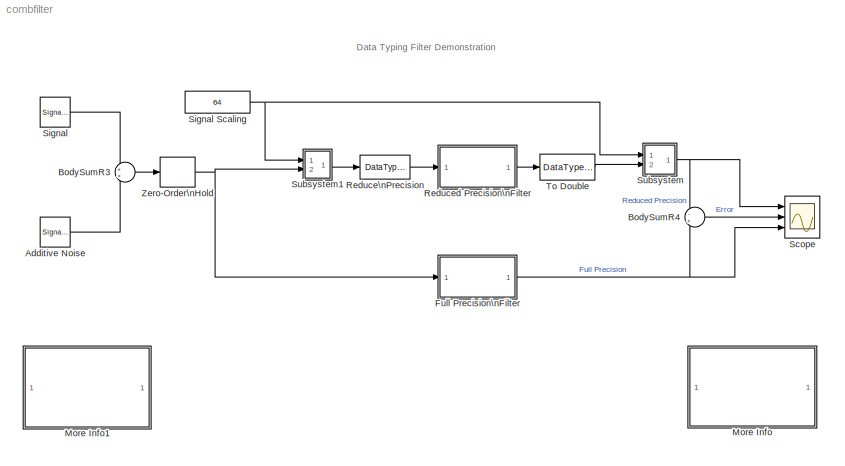
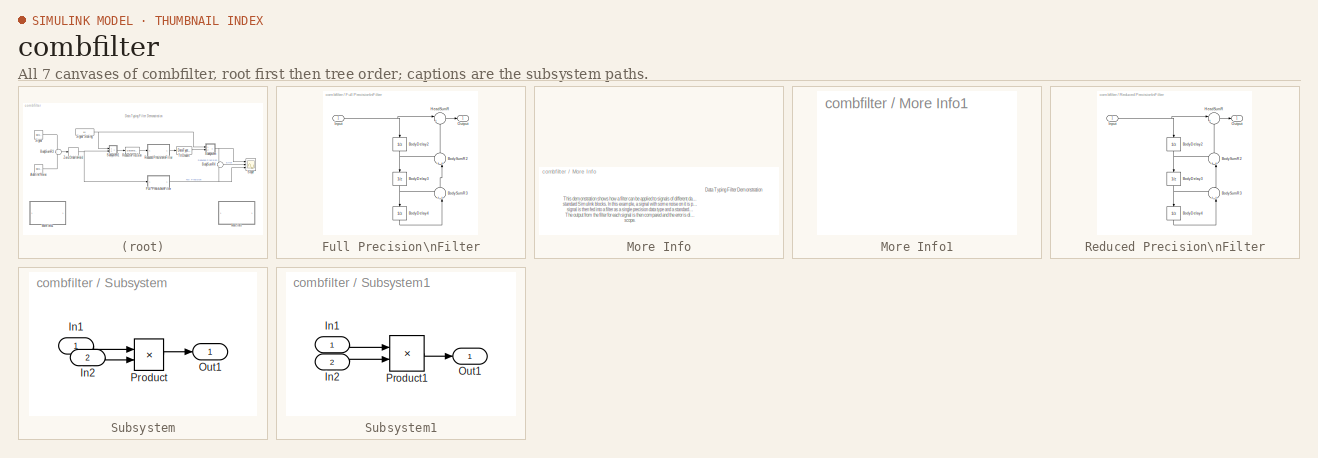
[diagram: thumbnail index - all 7 canvases of the model, root first then tree order]
MODEL combfilter
KIND model
BLOCK [SignalGenerator] Additive Noise
  Amplitude = 3
  AttributesFormatString = Waveform: %<Waveform>\\nAmplitude: %<Amplitude>\\nFreq: %<Frequency> %<Units>
  Frequency = 25
  Ports = [0, 1]
BLOCK [Sum] BodySumR3
  IconShape = round
  Ports = [2, 1]
BLOCK [Sum] BodySumR4
  IconShape = round
  Inputs = -+
  Ports = [2, 1]
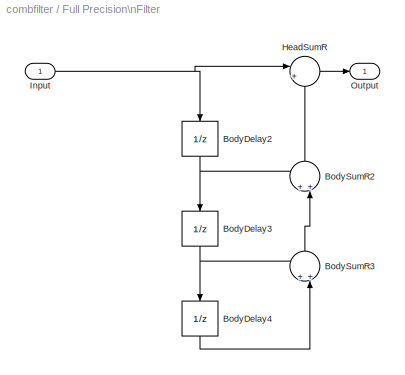
BLOCK [SubSystem] Full Precision\nFilter
  MinAlgLoopOccurrences = off
  Ports = [1, 1]
  PropExecContextAcrossSSBoundary = on
  RTWSystemCode = Auto
  TreatAsAtomicUnit = off
BLOCK [UnitDelay] Full Precision\nFilter/BodyDelay2
  SampleTime = -1
BLOCK [UnitDelay] Full Precision\nFilter/BodyDelay3
  SampleTime = -1
BLOCK [UnitDelay] Full Precision\nFilter/BodyDelay4
  SampleTime = -1
BLOCK [Sum] Full Precision\nFilter/BodySumR2
  IconShape = round
  Inputs = ++|
  Ports = [2, 1]
BLOCK [Sum] Full Precision\nFilter/BodySumR3
  IconShape = round
  Inputs = ++|
  Ports = [2, 1]
BLOCK [Sum] Full Precision\nFilter/HeadSumR
  IconShape = round
  Inputs = |++
  Ports = [2, 1]
BLOCK [Inport] Full Precision\nFilter/Input
  IconDisplay = Port number
  LatchInput = off
  Port = 1
BLOCK [Outport] Full Precision\nFilter/Output
  IconDisplay = Port number
BLOCK [SubSystem] More Info
  MaskDisplay = disp('Double click\\nhere for\\ninformation on\\nthis demonstration')
  MaskIconFrame = on
  MaskIconOpaque = on
  MaskIconRotate = none
  MaskIconUnits = autoscale
  MinAlgLoopOccurrences = off
  Ports = []
  PropExecContextAcrossSSBoundary = on
  RTWSystemCode = Auto
  TreatAsAtomicUnit = off
BLOCK [SubSystem] More Info1
  MaskDisplay = disp('Double click\\nhere for\\nSimulink Help')
  MaskIconFrame = on
  MaskIconOpaque = on
  MaskIconRotate = none
  MaskIconUnits = autoscale
  MinAlgLoopOccurrences = off
  OpenFcn = simcad(bdroot);
  Ports = []
  PropExecContextAcrossSSBoundary = on
  RTWSystemCode = Auto
  TreatAsAtomicUnit = off
BLOCK [DataTypeConversion] Reduce\nPrecision
  OutDataTypeMode = single
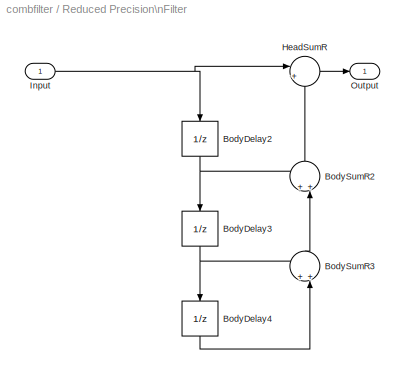
BLOCK [SubSystem] Reduced Precision\nFilter
  MinAlgLoopOccurrences = off
  Ports = [1, 1]
  PropExecContextAcrossSSBoundary = on
  RTWSystemCode = Auto
  TreatAsAtomicUnit = off
BLOCK [UnitDelay] Reduced Precision\nFilter/BodyDelay2
  SampleTime = -1
BLOCK [UnitDelay] Reduced Precision\nFilter/BodyDelay3
  SampleTime = -1
BLOCK [UnitDelay] Reduced Precision\nFilter/BodyDelay4
  SampleTime = -1
BLOCK [Sum] Reduced Precision\nFilter/BodySumR2
  IconShape = round
  Inputs = ++|
  Ports = [2, 1]
BLOCK [Sum] Reduced Precision\nFilter/BodySumR3
  IconShape = round
  Inputs = ++|
  Ports = [2, 1]
BLOCK [Sum] Reduced Precision\nFilter/HeadSumR
  IconShape = round
  Inputs = |++
  Ports = [2, 1]
BLOCK [Inport] Reduced Precision\nFilter/Input
  IconDisplay = Port number
  LatchInput = off
  Port = 1
BLOCK [Outport] Reduced Precision\nFilter/Output
  IconDisplay = Port number
BLOCK [Scope] Scope
  DataFormat = Array
  LimitDataPoints = off
  NumInputPorts = 3
  Ports = [3]
  TimeRange = 4
  YMax = 400~0.2~400
  YMin = -400~-0.2~-400
BLOCK [SignalGenerator] Signal
  Amplitude = 100
  AttributesFormatString = Waveform: %<Waveform>\\nAmplitude: %<Amplitude>\\nFreq: %<Frequency> %<Units>
  Ports = [0, 1]
BLOCK [Constant] Signal Scaling
  Value = 64
BLOCK [SubSystem] Subsystem
  MaskDisplay = port_label('input',1,'/')\nport_label('input',2,'x')
  MaskIconFrame = on
  MaskIconOpaque = on
  MaskIconRotate = none
  MaskIconUnits = autoscale
  MinAlgLoopOccurrences = off
  Ports = [2, 1]
  PropExecContextAcrossSSBoundary = on
  RTWSystemCode = Auto
  TreatAsAtomicUnit = off
BLOCK [Inport] Subsystem/In1
  IconDisplay = Port number
  LatchInput = off
  Port = 1
BLOCK [Inport] Subsystem/In2
  IconDisplay = Port number
  LatchInput = off
  Port = 2
BLOCK [Outport] Subsystem/Out1
  IconDisplay = Port number
BLOCK [Product] Subsystem/Product
  Inputs = /*
  Ports = [2, 1]
BLOCK [SubSystem] Subsystem1
  MaskDisplay = disp('X')
  MaskIconFrame = on
  MaskIconOpaque = on
  MaskIconRotate = none
  MaskIconUnits = autoscale
  MinAlgLoopOccurrences = off
  Ports = [2, 1]
  PropExecContextAcrossSSBoundary = on
  RTWSystemCode = Auto
  TreatAsAtomicUnit = off
BLOCK [Inport] Subsystem1/In1
  IconDisplay = Port number
  LatchInput = off
  Port = 1
BLOCK [Inport] Subsystem1/In2
  IconDisplay = Port number
  LatchInput = off
  Port = 2
BLOCK [Outport] Subsystem1/Out1
  IconDisplay = Port number
BLOCK [Product] Subsystem1/Product1
  Ports = [2, 1]
BLOCK [DataTypeConversion] To Double
  OutDataTypeMode = double
BLOCK [ZeroOrderHold] Zero-Order\nHold
  SampleTime = 0.01
ANNOTATION (root): Data Typing Filter Demonstration
ANNOTATION More Info: Data Typing Filter Demonstration
ANNOTATION More Info: This demonstration shows how a filter can be applied to signals of different data types using\nstandard Simulink blocks. In this example, a signal with some noise on it is produced. This \nsignal is then fed into a filter as a single precision data type and a standard double data type.\nThe output from the filter for each signal is then compared and the error is displayed on the \nscope.
LINE Additive Noise:1 -> BodySumR3:2
LINE BodySumR3:1 -> Zero-Order\nHold:1
LINE BodySumR4:1 -> Scope:2
NET Full Precision\nFilter/BodyDelay2:1 -> Full Precision\nFilter/BodyDelay3:1, Full Precision\nFilter/BodySumR2:1
NET Full Precision\nFilter/BodyDelay3:1 -> Full Precision\nFilter/BodyDelay4:1, Full Precision\nFilter/BodySumR3:1
LINE Full Precision\nFilter/BodyDelay4:1 -> Full Precision\nFilter/BodySumR3:2
LINE Full Precision\nFilter/BodySumR2:1 -> Full Precision\nFilter/HeadSumR:2
LINE Full Precision\nFilter/BodySumR3:1 -> Full Precision\nFilter/BodySumR2:2
LINE Full Precision\nFilter/HeadSumR:1 -> Full Precision\nFilter/Output:1
NET Full Precision\nFilter/Input:1 -> Full Precision\nFilter/BodyDelay2:1, Full Precision\nFilter/HeadSumR:1
NET Full Precision\nFilter:1 -> BodySumR4:2, Scope:3
LINE Reduce\nPrecision:1 -> Reduced Precision\nFilter:1
NET Reduced Precision\nFilter/BodyDelay2:1 -> Reduced Precision\nFilter/BodyDelay3:1, Reduced Precision\nFilter/BodySumR2:1
NET Reduced Precision\nFilter/BodyDelay3:1 -> Reduced Precision\nFilter/BodyDelay4:1, Reduced Precision\nFilter/BodySumR3:1
LINE Reduced Precision\nFilter/BodyDelay4:1 -> Reduced Precision\nFilter/BodySumR3:2
LINE Reduced Precision\nFilter/BodySumR2:1 -> Reduced Precision\nFilter/HeadSumR:2
LINE Reduced Precision\nFilter/BodySumR3:1 -> Reduced Precision\nFilter/BodySumR2:2
LINE Reduced Precision\nFilter/HeadSumR:1 -> Reduced Precision\nFilter/Output:1
NET Reduced Precision\nFilter/Input:1 -> Reduced Precision\nFilter/BodyDelay2:1, Reduced Precision\nFilter/HeadSumR:1
LINE Reduced Precision\nFilter:1 -> To Double:1
NET Signal Scaling:1 -> Subsystem1:1, Subsystem:1
LINE Signal:1 -> BodySumR3:1
LINE Subsystem/In1:1 -> Subsystem/Product:1
LINE Subsystem/In2:1 -> Subsystem/Product:2
LINE Subsystem/Product:1 -> Subsystem/Out1:1
LINE Subsystem1/In1:1 -> Subsystem1/Product1:1
LINE Subsystem1/In2:1 -> Subsystem1/Product1:2
LINE Subsystem1/Product1:1 -> Subsystem1/Out1:1
LINE Subsystem1:1 -> Reduce\nPrecision:1
NET Subsystem:1 -> BodySumR4:1, Scope:1
LINE To Double:1 -> Subsystem:2
NET Zero-Order\nHold:1 -> Full Precision\nFilter:1, Subsystem1:2
note: NET lines group one-source signal fan-out (src -> all destinations, sorted); 1:1 wires keep LINE
